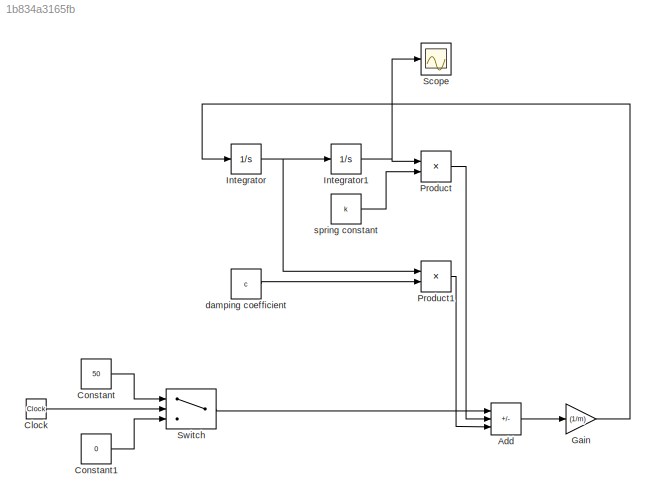
MODEL slx_1b834a3165fb
KIND model
CONFIG AbsTol = auto
CONFIG EnableMultiTasking = off
CONFIG FixedStep = auto
CONFIG MaxStep = 0.01
CONFIG MinStep = auto
CONFIG RelTol = 1e-3
CONFIG SampleTimeConstraint = Unconstrained
CONFIG SolverName = ode45
CONFIG StartTime = 0.0
CONFIG StopTime = 20
BLOCK [Sum] Add
  IconShape = rectangular
  Inputs = +--
BLOCK [Clock] Clock
BLOCK [Constant] Constant
  Value = 50
BLOCK [Constant] Constant1
  Value = 0
BLOCK [Gain] Gain
  Gain = (1/m)
BLOCK [Integrator] Integrator
BLOCK [Integrator] Integrator1
BLOCK [Product] Product
BLOCK [Product] Product1
BLOCK [Scope] Scope
  Floating = off
  NumInputPorts = 1
  ScopeSpecificationString = Simulink.scopes.TimeScopeBlockCfg('CurrentConfiguration', extmgr.ConfigurationSet(extmgr.Configuration('Core','General UI',true),extmgr.Configuration('Core','Source UI',true),extmgr.Configuration('Sources','WiredSimulink',true),extmgr.Configuration('Visuals','Time Domain',true,'SerializedDisplays',{struct('MinYLimReal','-0.0009','MaxYLimReal','0.00812','YLabelReal','','MinYLimMag','0.00000','MaxYL...<+1358ch>
BLOCK [Switch] Switch
  Criteria = u2 > Threshold
  InputSameDT = off
  SaturateOnIntegerOverflow = off
  Threshold = 10
BLOCK [Constant] damping coefficient
  Value = c
BLOCK [Constant] spring constant
  Value = k
LINE Add:1 -> Gain:1
LINE Clock:1 -> Switch:2
LINE Constant1:1 -> Switch:3
LINE Constant:1 -> Switch:1
LINE Gain:1 -> Integrator:1
NET Integrator1:1 -> Product:1, Scope:1
NET Integrator:1 -> Integrator1:1, Product1:1
LINE Product1:1 -> Add:3
LINE Product:1 -> Add:2
LINE Switch:1 -> Add:1
LINE damping coefficient:1 -> Product1:2
LINE spring constant:1 -> Product:2
note: NET lines group one-source signal fan-out (src -> all destinations, sorted); 1:1 wires keep LINE
